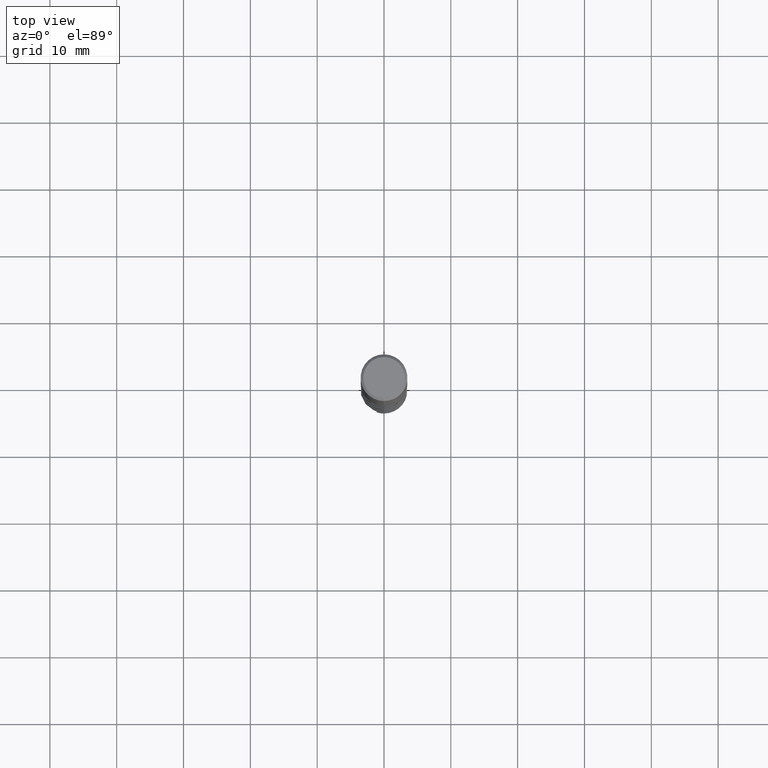
[diagram: clean part render]
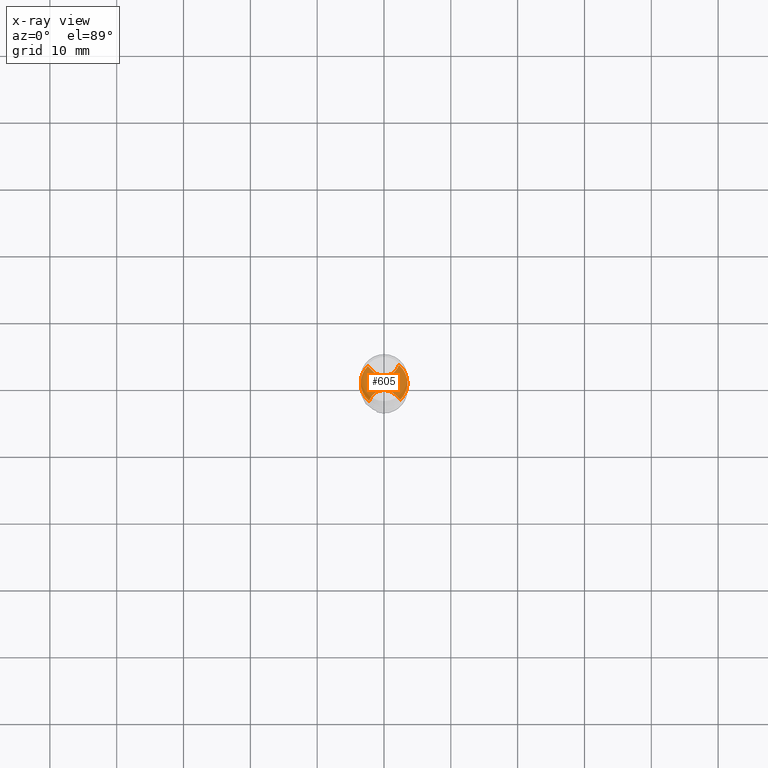
[diagram: x-ray — body ghosted, one internal face saturated and labeled with its STEP entity id]
A machine part, top view, then the same camera in x-ray: the body is ghosted and one INTERNAL B-rep face — a face not visible from any outside direction — is saturated and labeled: STEP entity #605.
In plain terms, the highlighted planar face has unit normal (-0, 0, 1).
Its self-contained STEP definition (entity closure, byte-faithful):
#323=EDGE_CURVE('',#489,#695,#828,.T.);
#331=VERTEX_POINT('',#837);
#371=VERTEX_POINT('',#880);
#441=VERTEX_POINT('',#957);
#487=VERTEX_POINT('',#1004);
#489=VERTEX_POINT('',#1006);
#491=EDGE_CURVE('',#371,#441,#1008,.T.);
#509=EDGE_CURVE('',#487,#695,#1027,.T.);
#605=ADVANCED_FACE('',(#1134),#1135,.T.);
#611=EDGE_CURVE('',#487,#371,#1141,.T.);
#627=EDGE_CURVE('',#331,#489,#1157,.T.);
#659=EDGE_CURVE('',#331,#441,#1193,.T.);
#695=VERTEX_POINT('',#1230);
#828=B_SPLINE_CURVE_WITH_KNOTS('',3,(#1906,#1907,#1908,#1909),.UNSPECIFIED.,.F.,.F.,(4,4),(0.0,2.5563221006224),.UNSPECIFIED.);
#837=CARTESIAN_POINT('',(2.22784849569712,2.69925750720825,-47.0));
#880=CARTESIAN_POINT('',(1.65304082034088,-1.73375824224887,-47.0));
#957=CARTESIAN_POINT('',(2.43401970501603,-2.51492506560209,-47.0));
#1004=CARTESIAN_POINT('',(-2.22784849569711,-2.69925750720825,-47.0));
#1006=CARTESIAN_POINT('',(-1.65304082034088,1.73375824224887,-47.0));
#1008=B_SPLINE_CURVE_WITH_KNOTS('',3,(#3637,#3638,#3639,#3640),.UNSPECIFIED.,.F.,.F.,(4,4),(0.0,2.55632210032347),.UNSPECIFIED.);
#1027=CIRCLE('',#3873,3.4999);
#1134=FACE_OUTER_BOUND('',#7034,.T.);
#1135=PLANE('',#7035);
#1141=B_SPLINE_CURVE_WITH_KNOTS('',3,(#7046,#7047,#7048,#7049,#7050,#7051,#7052,#7053,#7054,#7055,#7056,#7057,#7058,#7059,#7060,#7061),.UNSPECIFIED.,.F.,.F.,(4,2,2,2,2,2,2,4),(0.0,0.911444695573624,1.82272019044361,2.73396630325363,3.64530522420815,4.55680377426684,5.11867824773712,5.68056838072584),.UNSPECIFIED.);
#1157=B_SPLINE_CURVE_WITH_KNOTS('',3,(#7083,#7084,#7085,#7086,#7087,#7088,#7089,#7090,#7091,#7092,#7093,#7094,#7095,#7096,#7097,#7098),.UNSPECIFIED.,.F.,.F.,(4,2,2,2,2,2,2,4),(0.0,0.911444695573629,1.82272019044362,2.73396630325363,3.64530522420815,4.55680377426687,5.11867824773714,5.68056838072584),.UNSPECIFIED.);
#1193=CIRCLE('',#7777,3.4999);
#1230=CARTESIAN_POINT('',(-2.43401970501603,2.51492506560209,-47.0));
#1906=CARTESIAN_POINT('',(-1.65304082041158,1.73375824217817,-47.0));
#1907=CARTESIAN_POINT('',(-2.25550295327537,2.33635789629888,-47.0));
#1908=CARTESIAN_POINT('',(-2.86582263310393,2.94683326350686,-47.0));
#1909=CARTESIAN_POINT('',(-3.46871181970874,3.5499,-47.0));
#3637=CARTESIAN_POINT('',(1.65304082041158,-1.73375824217817,-47.0));
#3638=CARTESIAN_POINT('',(2.25550295320491,-2.33635789622841,-47.0));
#3639=CARTESIAN_POINT('',(2.86582263307916,-2.94683326348208,-47.0));
#3640=CARTESIAN_POINT('',(3.46871181970874,-3.5499,-47.0));
#3873=AXIS2_PLACEMENT_3D('',#8807,#8808,#8809);
#7034=EDGE_LOOP('',(#8950,#8951,#8952,#8953,#8954,#8955));
#7035=AXIS2_PLACEMENT_3D('',#8956,#8957,#8958);
#7046=CARTESIAN_POINT('',(-2.32423076208617,-3.5499,-47.0));
#7047=CARTESIAN_POINT('',(-2.34599198941278,-3.246865444956,-47.0));
#7048=CARTESIAN_POINT('',(-2.30835757480604,-2.94248057213449,-47.0));
#7049=CARTESIAN_POINT('',(-2.11852795409537,-2.36532589856623,-47.0));
#7050=CARTESIAN_POINT('',(-1.96817060488099,-2.09807423589491,-47.0));
#7051=CARTESIAN_POINT('',(-1.57347514122223,-1.63625521720326,-47.0));
#7052=CARTESIAN_POINT('',(-1.33291740159053,-1.44610529090639,-47.0));
#7053=CARTESIAN_POINT('',(-0.792425795439806,-1.16869467920021,-47.0));
#7054=CARTESIAN_POINT('',(-0.497657158581096,-1.08409841961464,-47.0));
#7055=CARTESIAN_POINT('',(0.107771449275399,-1.03263618700618,-47.0));
#7056=CARTESIAN_POINT('',(0.412644064718782,-1.06628276424014,-47.0));
#7057=CARTESIAN_POINT('',(0.881161775202075,-1.21357597041519,-47.0));
#7058=CARTESIAN_POINT('',(1.05242248095997,-1.29105206825281,-47.0));
#7059=CARTESIAN_POINT('',(1.37273125203091,-1.48526679776618,-47.0));
#7060=CARTESIAN_POINT('',(1.52061799675326,-1.60130273904102,-47.0));
#7061=CARTESIAN_POINT('',(1.65304082034087,-1.73375824224887,-47.0));
#7083=CARTESIAN_POINT('',(2.32423076208617,3.5499,-47.0));
#7084=CARTESIAN_POINT('',(2.34599198941278,3.24686544495599,-47.0));
#7085=CARTESIAN_POINT('',(2.30835757480604,2.94248057213449,-47.0));
#7086=CARTESIAN_POINT('',(2.11852795409537,2.36532589856623,-47.0));
#7087=CARTESIAN_POINT('',(1.96817060488099,2.09807423589491,-47.0));
#7088=CARTESIAN_POINT('',(1.57347514122223,1.63625521720326,-47.0));
#7089=CARTESIAN_POINT('',(1.33291740159053,1.44610529090639,-47.0));
#7090=CARTESIAN_POINT('',(0.792425795439807,1.16869467920021,-47.0));
#7091=CARTESIAN_POINT('',(0.497657158581094,1.08409841961464,-47.0));
#7092=CARTESIAN_POINT('',(-0.107771449275398,1.03263618700618,-47.0));
#7093=CARTESIAN_POINT('',(-0.412644064718783,1.06628276424014,-47.0));
#7094=CARTESIAN_POINT('',(-0.881161775202069,1.21357597041519,-47.0));
#7095=CARTESIAN_POINT('',(-1.05242248095996,1.2910520682528,-47.0));
#7096=CARTESIAN_POINT('',(-1.37273125203092,1.48526679776618,-47.0));
#7097=CARTESIAN_POINT('',(-1.52061799675327,1.60130273904102,-47.0));
#7098=CARTESIAN_POINT('',(-1.65304082034087,1.73375824224887,-47.0));
#7777=AXIS2_PLACEMENT_3D('',#9022,#9023,#9024);
#8807=CARTESIAN_POINT('',(0.0,0.0,-47.0));
#8808=DIRECTION('',(0.0,0.0,-1.0));
#8809=DIRECTION('',(0.0,1.0,0.0));
#8950=ORIENTED_EDGE('',*,*,#491,.T.);
#8951=ORIENTED_EDGE('',*,*,#659,.F.);
#8952=ORIENTED_EDGE('',*,*,#627,.T.);
#8953=ORIENTED_EDGE('',*,*,#323,.T.);
#8954=ORIENTED_EDGE('',*,*,#509,.F.);
#8955=ORIENTED_EDGE('',*,*,#611,.T.);
#8956=CARTESIAN_POINT('',(0.0,1.74995,-47.0));
#8957=DIRECTION('',(-0.0,0.0,1.0));
#8958=DIRECTION('',(0.0,-1.0,0.0));
#9022=CARTESIAN_POINT('',(0.0,0.0,-47.0));
#9023=DIRECTION('',(0.0,0.0,-1.0));
#9024=DIRECTION('',(0.0,1.0,0.0));